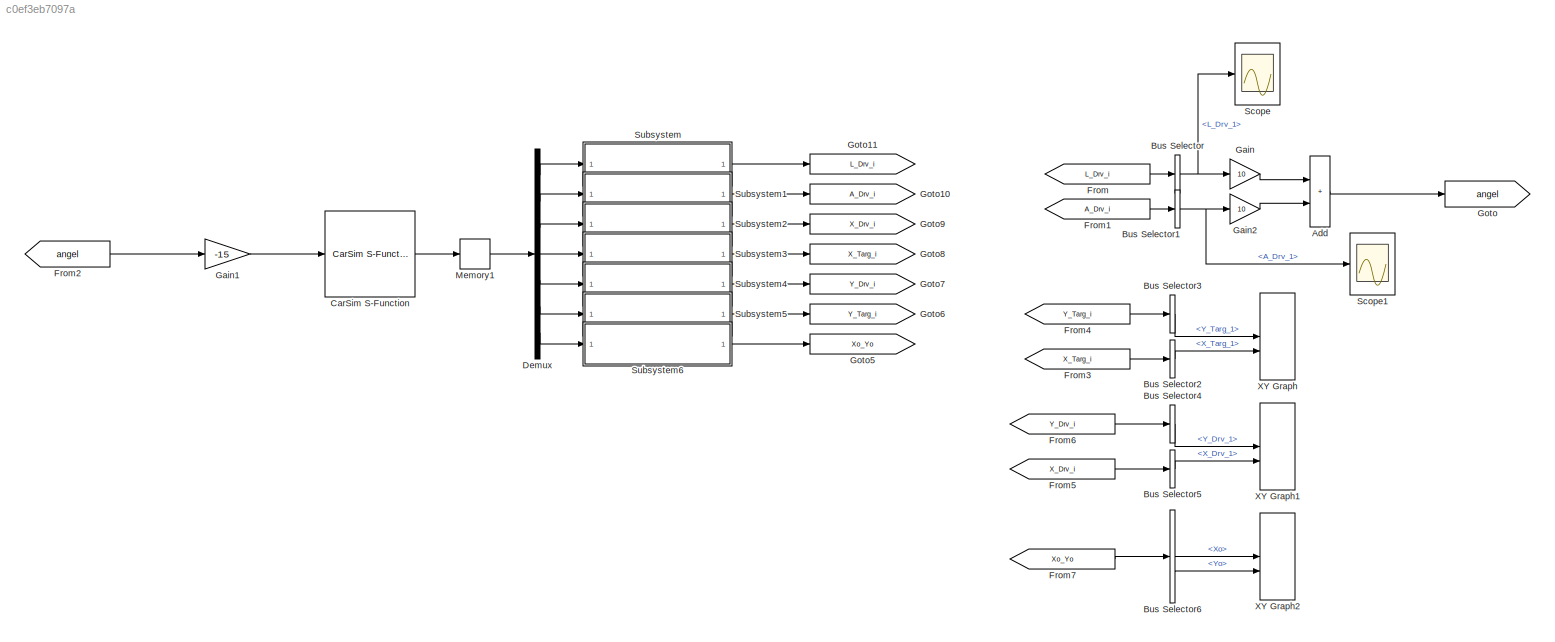
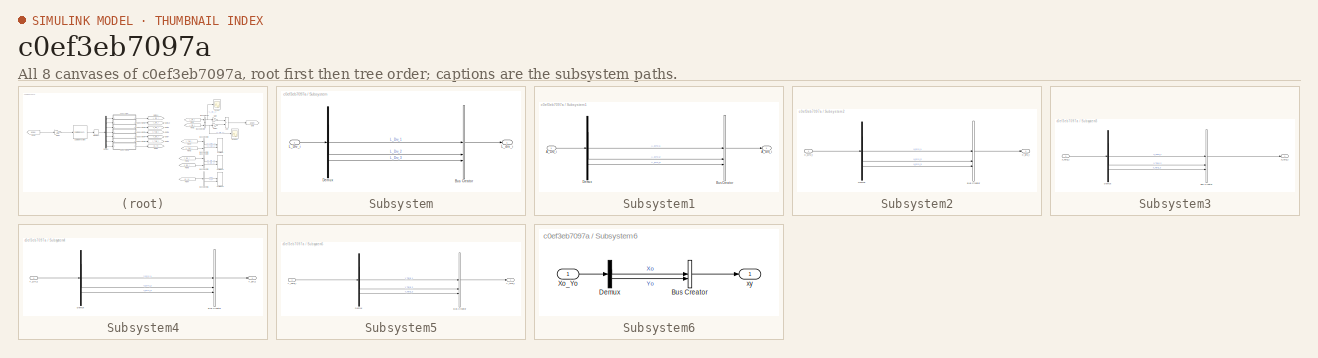
[diagram: thumbnail index - all 8 canvases of the model, root first then tree order]
MODEL slx_c0ef3eb7097a
KIND model
CONFIG AbsTol = auto
CONFIG EnableMultiTasking = off
CONFIG FixedStep = auto
CONFIG MaxStep = auto
CONFIG MinStep = auto
CONFIG RelTol = 1e-3
CONFIG SampleTimeConstraint = Unconstrained
CONFIG SolverName = VariableStepAuto
CONFIG StartTime = 0.0
CONFIG StopTime = 60
BLOCK [Sum] Add
  IconShape = rectangular
BLOCK [BusSelector] Bus Selector
  OutputSignals = L_Drv_1
BLOCK [BusSelector] Bus Selector1
  OutputSignals = A_Drv_1
BLOCK [BusSelector] Bus Selector2
  OutputSignals = X_Targ_1
BLOCK [BusSelector] Bus Selector3
  OutputSignals = Y_Targ_1
BLOCK [BusSelector] Bus Selector4
  OutputSignals = Y_Drv_1
BLOCK [BusSelector] Bus Selector5
  OutputSignals = X_Drv_1
BLOCK [BusSelector] Bus Selector6
  OutputSignals = Xo,Yo
BLOCK [Reference] CarSim S-Function  REF=Solver_SF/CarSim S-Function
  Priority = 1
  SourceBlock = Solver_SF/CarSim S-Function
  SourceProductName = CarSim S-Function
  SourceType = Vehicle math model library
BLOCK [Demux] Demux
  Outputs = [3 3 3 3 3 3 2]
BLOCK [From] From
  GotoTag = L_Drv_i
BLOCK [From] From1
  GotoTag = A_Drv_i
BLOCK [From] From2
  GotoTag = angel
BLOCK [From] From3
  GotoTag = X_Targ_i
BLOCK [From] From4
  GotoTag = Y_Targ_i
BLOCK [From] From5
  GotoTag = X_Drv_i
BLOCK [From] From6
  GotoTag = Y_Drv_i
BLOCK [From] From7
  GotoTag = Xo_Yo
BLOCK [Gain] Gain
  Gain = 10
BLOCK [Gain] Gain1
  Gain = -15
BLOCK [Gain] Gain2
  Gain = 10
BLOCK [Goto] Goto
  GotoTag = angel
BLOCK [Goto] Goto10
  GotoTag = A_Drv_i
BLOCK [Goto] Goto11
  GotoTag = L_Drv_i
BLOCK [Goto] Goto5
  GotoTag = Xo_Yo
BLOCK [Goto] Goto6
  GotoTag = Y_Targ_i
BLOCK [Goto] Goto7
  GotoTag = Y_Drv_i
BLOCK [Goto] Goto8
  GotoTag = X_Targ_i
BLOCK [Goto] Goto9
  GotoTag = X_Drv_i
BLOCK [Memory] Memory1
BLOCK [Scope] Scope
  Floating = off
  NumInputPorts = 1
  ScopeSpecificationString = Simulink.scopes.TimeScopeBlockCfg('CurrentConfiguration', extmgr.ConfigurationSet(extmgr.Configuration('Core','General UI',true),extmgr.Configuration('Core','Source UI',true),extmgr.Configuration('Sources','WiredSimulink',true),extmgr.Configuration('Visuals','Time Domain',true,'SerializedDisplays',{struct('MinYLimReal','-0.90793','MaxYLimReal','0.87812','YLabelReal','','MinYLimMag','0.00000','MaxY...<+1447ch>
BLOCK [Scope] Scope1
  Floating = off
  NumInputPorts = 1
  ScopeSpecificationString = Simulink.scopes.TimeScopeBlockCfg('CurrentConfiguration', extmgr.ConfigurationSet(extmgr.Configuration('Core','General UI',true),extmgr.Configuration('Core','Source UI',true),extmgr.Configuration('Sources','WiredSimulink',true,'DataLoggingVariableName','ScopeData1'),extmgr.Configuration('Visuals','Time Domain',true,'SerializedDisplays',{struct('MinYLimReal','-0.87082','MaxYLimReal','0.90109','YLab...<+1487ch>
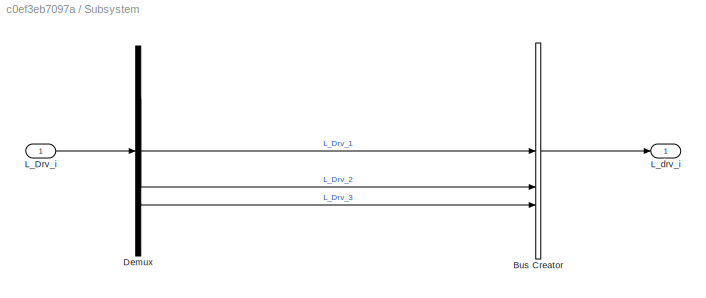
BLOCK [SubSystem] Subsystem
BLOCK [BusCreator] Subsystem/Bus Creator
  DisplayOption = bar
  InheritFromInputs = on
  Inputs = 3
BLOCK [Demux] Subsystem/Demux
  Outputs = 3
BLOCK [Inport] Subsystem/L_Drv_i
BLOCK [Outport] Subsystem/L_drv_i
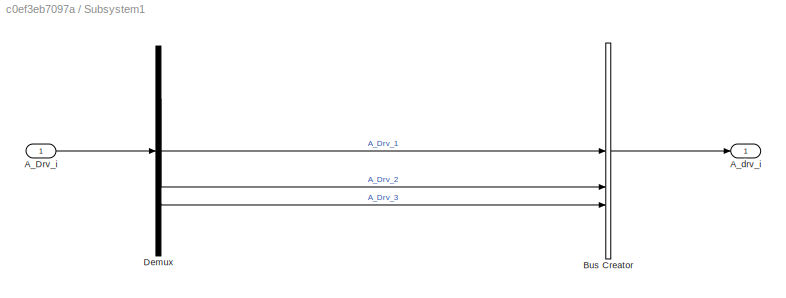
BLOCK [SubSystem] Subsystem1
BLOCK [Inport] Subsystem1/A_Drv_i
BLOCK [Outport] Subsystem1/A_drv_i
BLOCK [BusCreator] Subsystem1/Bus Creator
  DisplayOption = bar
  InheritFromInputs = on
  Inputs = 3
BLOCK [Demux] Subsystem1/Demux
  Outputs = 3
BLOCK [SubSystem] Subsystem2
BLOCK [BusCreator] Subsystem2/Bus Creator
  DisplayOption = bar
  InheritFromInputs = on
  Inputs = 3
BLOCK [Demux] Subsystem2/Demux
  Outputs = 3
BLOCK [Inport] Subsystem2/X_Drv_i
BLOCK [Outport] Subsystem2/X_drv_i
BLOCK [SubSystem] Subsystem3
BLOCK [BusCreator] Subsystem3/Bus Creator
  DisplayOption = bar
  InheritFromInputs = on
  Inputs = 3
BLOCK [Demux] Subsystem3/Demux
  Outputs = 3
BLOCK [Inport] Subsystem3/X_Targ_i
BLOCK [Outport] Subsystem3/X_targ_i
BLOCK [SubSystem] Subsystem4
BLOCK [BusCreator] Subsystem4/Bus Creator
  DisplayOption = bar
  InheritFromInputs = on
  Inputs = 3
BLOCK [Demux] Subsystem4/Demux
  Outputs = 3
BLOCK [Inport] Subsystem4/Y_Drv_i
BLOCK [Outport] Subsystem4/Y_drv_i
BLOCK [SubSystem] Subsystem5
BLOCK [BusCreator] Subsystem5/Bus Creator
  DisplayOption = bar
  InheritFromInputs = on
  Inputs = 3
BLOCK [Demux] Subsystem5/Demux
  Outputs = 3
BLOCK [Inport] Subsystem5/Y_Targ_i
BLOCK [Outport] Subsystem5/Y_targ_i
BLOCK [SubSystem] Subsystem6
BLOCK [BusCreator] Subsystem6/Bus Creator
  DisplayOption = bar
  InheritFromInputs = on
  Inputs = 2
BLOCK [Demux] Subsystem6/Demux
  Outputs = 2
BLOCK [Inport] Subsystem6/Xo_Yo
BLOCK [Outport] Subsystem6/xy
BLOCK [Record] XY Graph
  CompatibilityTag = XY
  FileSettingsInternal = {"entries":[{"content":{"excelSettings":{"content":{},"type":"Streamout.ExcelSettings"}},"type":"Streamout.FileSettingStorage","uuid":""}],"packageUris":["http:\/\/schema.mathworks.com\/mf0\/streamout_blocks\/R2020a"],"version":"1.0"}  <repeated x3 — deduplicated; at blocks: XY Graph, XY Graph1, XY Graph2>
  Layout = [1 1]
  SignalsInternal = {"entries":[{"content":{},"type":"RecordBlkView.InputSignals","uuid":""}],"packageUris":["http:\/\/schema.mathworks.com\/mf0\/streamout_blocks\/R2020a"],"version":"1.0"}
  VisualizationBindings = {"xyplotplugin":{"info":[{"series":[{"bindingParametersList":[{"parameter":"X-Axis","signalID":2585,"signalName":"<Y_Targ_1>"},{"parameter":"Y-Axis","signalID":2589,"signalName":"<X_Targ_1>"}],"seriesID":0}],"subplotID":1}]}}
BLOCK [Record] XY Graph1
  CompatibilityTag = XY
  Layout = [1 1]
  SignalsInternal = {"entries":[{"content":{},"type":"RecordBlkView.InputSignals","uuid":""}],"packageUris":["http:\/\/schema.mathworks.com\/mf0\/streamout_blocks\/R2020a"],"version":"1.0"}
  VisualizationBindings = {"xyplotplugin":{"info":[{"series":[{"bindingParametersList":[{"parameter":"X-Axis","signalID":2593,"signalName":"<Y_Drv_1>"},{"parameter":"Y-Axis","signalID":2597,"signalName":"<X_Drv_1>"}],"seriesID":0}],"subplotID":1}]}}
BLOCK [Record] XY Graph2
  CompatibilityTag = XY
  Layout = [1 1]
  SignalsInternal = {"entries":[{"content":{"signals":[{"content":{"blockPath":[],"dimensions":[1],"domain":"","lineColor":"#a2142f","port":1,"sid":[""],"signalID":1,"signalName":"<Y_Targ_1>"},"type":"RecordBlkView.Signal","uuid":""},{"content":{"blockPath":[],"dimensions":[1],"domain":"","lineColor":"#139fff","port":2,"sid":[""],"signalID":2,"signalName":"<X_Targ_1>"},"type":"RecordBlkView.Signal","uuid":""},{"conte...<+868ch>
  VisualizationBindings = {"xyplotplugin":{"info":[{"series":[{"bindingParametersList":[{"parameter":"X-Axis","signalID":5,"signalName":"<Xo>"},{"parameter":"Y-Axis","signalID":6,"signalName":"<Yo>"}],"seriesID":0}],"subplotID":1}]}}
LINE Add:1 -> Goto:1
NET Bus Selector1:1 -> Gain2:1, Scope1:1
LINE Bus Selector2:1 -> XY Graph:2
LINE Bus Selector3:1 -> XY Graph:1
LINE Bus Selector4:1 -> XY Graph1:1
LINE Bus Selector5:1 -> XY Graph1:2
LINE Bus Selector6:1 -> XY Graph2:1
LINE Bus Selector6:2 -> XY Graph2:2
NET Bus Selector:1 -> Gain:1, Scope:1
LINE CarSim S-Function:1 -> Memory1:1
LINE Demux:1 -> Subsystem:1
LINE Demux:2 -> Subsystem1:1
LINE Demux:3 -> Subsystem2:1
LINE Demux:4 -> Subsystem3:1
LINE Demux:5 -> Subsystem4:1
LINE Demux:6 -> Subsystem5:1
LINE Demux:7 -> Subsystem6:1
LINE From1:1 -> Bus Selector1:1
LINE From2:1 -> Gain1:1
LINE From3:1 -> Bus Selector2:1
LINE From4:1 -> Bus Selector3:1
LINE From5:1 -> Bus Selector5:1
LINE From6:1 -> Bus Selector4:1
LINE From7:1 -> Bus Selector6:1
LINE From:1 -> Bus Selector:1
LINE Gain1:1 -> CarSim S-Function:1
LINE Gain2:1 -> Add:2
LINE Gain:1 -> Add:1
LINE Memory1:1 -> Demux:1
LINE Subsystem/Bus Creator:1 -> Subsystem/L_drv_i:1
LINE Subsystem/Demux:1 -> Subsystem/Bus Creator:1
LINE Subsystem/Demux:2 -> Subsystem/Bus Creator:2
LINE Subsystem/Demux:3 -> Subsystem/Bus Creator:3
LINE Subsystem/L_Drv_i:1 -> Subsystem/Demux:1
LINE Subsystem1/A_Drv_i:1 -> Subsystem1/Demux:1
LINE Subsystem1/Bus Creator:1 -> Subsystem1/A_drv_i:1
LINE Subsystem1/Demux:1 -> Subsystem1/Bus Creator:1
LINE Subsystem1/Demux:2 -> Subsystem1/Bus Creator:2
LINE Subsystem1/Demux:3 -> Subsystem1/Bus Creator:3
LINE Subsystem1:1 -> Goto10:1
LINE Subsystem2/Bus Creator:1 -> Subsystem2/X_drv_i:1
LINE Subsystem2/Demux:1 -> Subsystem2/Bus Creator:1
LINE Subsystem2/Demux:2 -> Subsystem2/Bus Creator:2
LINE Subsystem2/Demux:3 -> Subsystem2/Bus Creator:3
LINE Subsystem2/X_Drv_i:1 -> Subsystem2/Demux:1
LINE Subsystem2:1 -> Goto9:1
LINE Subsystem3/Bus Creator:1 -> Subsystem3/X_targ_i:1
LINE Subsystem3/Demux:1 -> Subsystem3/Bus Creator:1
LINE Subsystem3/Demux:2 -> Subsystem3/Bus Creator:2
LINE Subsystem3/Demux:3 -> Subsystem3/Bus Creator:3
LINE Subsystem3/X_Targ_i:1 -> Subsystem3/Demux:1
LINE Subsystem3:1 -> Goto8:1
LINE Subsystem4/Bus Creator:1 -> Subsystem4/Y_drv_i:1
LINE Subsystem4/Demux:1 -> Subsystem4/Bus Creator:1
LINE Subsystem4/Demux:2 -> Subsystem4/Bus Creator:2
LINE Subsystem4/Demux:3 -> Subsystem4/Bus Creator:3
LINE Subsystem4/Y_Drv_i:1 -> Subsystem4/Demux:1
LINE Subsystem4:1 -> Goto7:1
LINE Subsystem5/Bus Creator:1 -> Subsystem5/Y_targ_i:1
LINE Subsystem5/Demux:1 -> Subsystem5/Bus Creator:1
LINE Subsystem5/Demux:2 -> Subsystem5/Bus Creator:2
LINE Subsystem5/Demux:3 -> Subsystem5/Bus Creator:3
LINE Subsystem5/Y_Targ_i:1 -> Subsystem5/Demux:1
LINE Subsystem5:1 -> Goto6:1
LINE Subsystem6/Bus Creator:1 -> Subsystem6/xy:1
LINE Subsystem6/Demux:1 -> Subsystem6/Bus Creator:1
LINE Subsystem6/Demux:2 -> Subsystem6/Bus Creator:2
LINE Subsystem6/Xo_Yo:1 -> Subsystem6/Demux:1
LINE Subsystem6:1 -> Goto5:1
LINE Subsystem:1 -> Goto11:1
note: NET lines group one-source signal fan-out (src -> all destinations, sorted); 1:1 wires keep LINE
